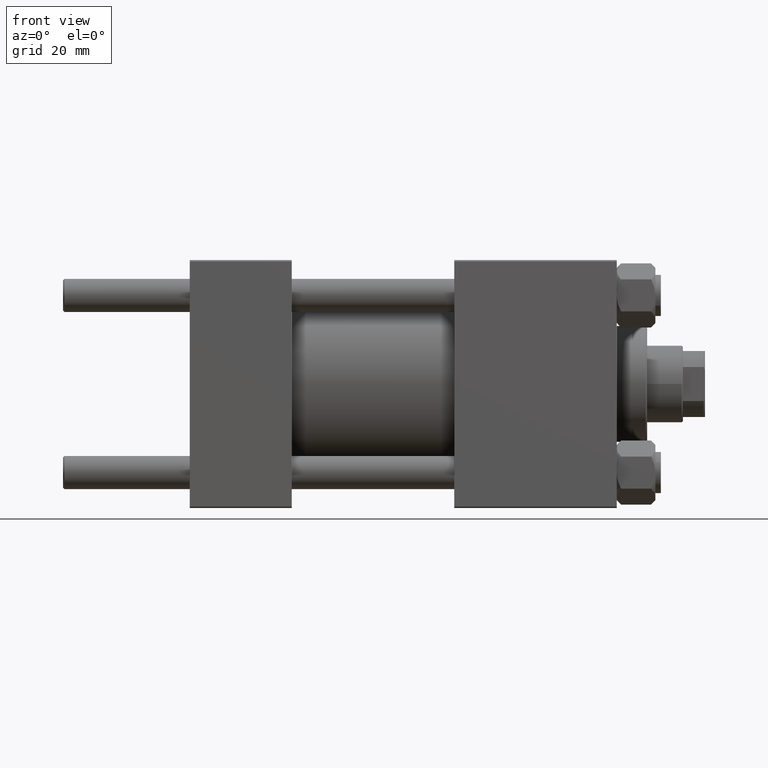
[diagram: clean part render]
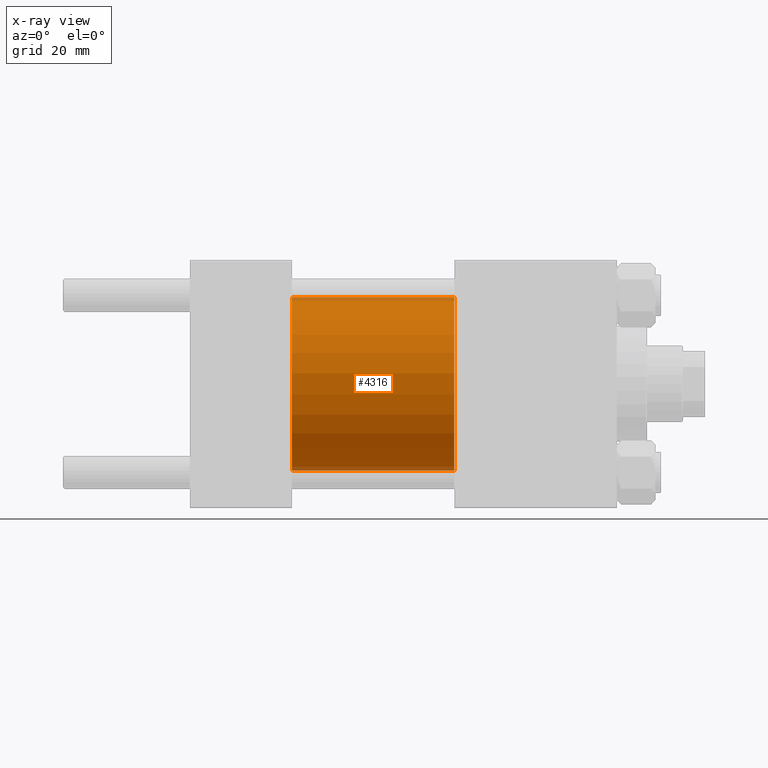
[diagram: x-ray — body ghosted, one internal face saturated and labeled with its STEP entity id]
A machine part, front view, then the same camera in x-ray: the body is ghosted and one INTERNAL B-rep face — a face not visible from any outside direction — is saturated and labeled: STEP entity #4316.
In plain terms, the highlighted cylindrical surface (partial cylindrical patch) has radius 31.5 mm, axis along (-1, -0, -0).
Its self-contained STEP definition (entity closure, byte-faithful):
#108 = VERTEX_POINT ( 'NONE', #19800 ) ;
#137 = VERTEX_POINT ( 'NONE', #34435 ) ;
#1741 = CARTESIAN_POINT ( 'NONE',  ( 96.00000000000000000, 0.000000000000000000, 0.000000000000000000 ) ) ;
#3680 = LINE ( 'NONE', #49521, #48612 ) ;
#4316 = ADVANCED_FACE ( 'NONE', ( #36282 ), #38639, .F. ) ;
#4757 = DIRECTION ( 'NONE',  ( 0.000000000000000000, 0.000000000000000000, 1.000000000000000000 ) ) ;
#6737 = DIRECTION ( 'NONE',  ( 0.000000000000000000, 0.000000000000000000, -1.000000000000000000 ) ) ;
#7254 = EDGE_LOOP ( 'NONE', ( #9039, #31855, #15398, #9642 ) ) ;
#7380 = CARTESIAN_POINT ( 'NONE',  ( 37.00000000000000000, 0.000000000000000000, 31.50000000000000000 ) ) ;
#9039 = ORIENTED_EDGE ( 'NONE', *, *, #11912, .T. ) ;
#9642 = ORIENTED_EDGE ( 'NONE', *, *, #41745, .F. ) ;
#10618 = CARTESIAN_POINT ( 'NONE',  ( 96.00000000000000000, 0.000000000000000000, 0.000000000000000000 ) ) ;
#11912 = EDGE_CURVE ( 'NONE', #108, #12166, #27581, .T. ) ;
#12166 = VERTEX_POINT ( 'NONE', #37588 ) ;
#13100 = CIRCLE ( 'NONE', #48496, 31.50000000000000000 ) ;
#13463 = EDGE_CURVE ( 'NONE', #46384, #137, #13100, .T. ) ;
#14206 = CARTESIAN_POINT ( 'NONE',  ( 96.00000000000000000, 3.857637417314162689E-15, -31.50000000000000000 ) ) ;
#15212 = EDGE_CURVE ( 'NONE', #12166, #137, #17225, .T. ) ;
#15398 = ORIENTED_EDGE ( 'NONE', *, *, #13463, .F. ) ;
#16289 = AXIS2_PLACEMENT_3D ( 'NONE', #10618, #21081, #45169 ) ;
#17225 = LINE ( 'NONE', #14206, #26080 ) ;
#19800 = CARTESIAN_POINT ( 'NONE',  ( 96.00000000000000000, 0.000000000000000000, 31.50000000000000000 ) ) ;
#21081 = DIRECTION ( 'NONE',  ( 1.000000000000000000, 0.000000000000000000, 0.000000000000000000 ) ) ;
#23617 = DIRECTION ( 'NONE',  ( -1.000000000000000000, -0.000000000000000000, -0.000000000000000000 ) ) ;
#25909 = DIRECTION ( 'NONE',  ( 1.000000000000000000, 0.000000000000000000, 0.000000000000000000 ) ) ;
#26080 = VECTOR ( 'NONE', #48709, 1000.000000000000000 ) ;
#27581 = CIRCLE ( 'NONE', #16289, 31.50000000000000000 ) ;
#28131 = AXIS2_PLACEMENT_3D ( 'NONE', #1741, #32481, #4757 ) ;
#31855 = ORIENTED_EDGE ( 'NONE', *, *, #15212, .T. ) ;
#32481 = DIRECTION ( 'NONE',  ( -1.000000000000000000, -0.000000000000000000, -0.000000000000000000 ) ) ;
#34435 = CARTESIAN_POINT ( 'NONE',  ( 37.00000000000000000, 3.857637417314162689E-15, -31.50000000000000000 ) ) ;
#36282 = FACE_OUTER_BOUND ( 'NONE', #7254, .T. ) ;
#37588 = CARTESIAN_POINT ( 'NONE',  ( 96.00000000000000000, 3.857637417314162689E-15, -31.50000000000000000 ) ) ;
#38639 = CYLINDRICAL_SURFACE ( 'NONE', #28131, 31.50000000000000000 ) ;
#41745 = EDGE_CURVE ( 'NONE', #108, #46384, #3680, .T. ) ;
#44820 = CARTESIAN_POINT ( 'NONE',  ( 37.00000000000000000, 0.000000000000000000, 0.000000000000000000 ) ) ;
#45169 = DIRECTION ( 'NONE',  ( 0.000000000000000000, 0.000000000000000000, -1.000000000000000000 ) ) ;
#46384 = VERTEX_POINT ( 'NONE', #7380 ) ;
#48496 = AXIS2_PLACEMENT_3D ( 'NONE', #44820, #25909, #6737 ) ;
#48612 = VECTOR ( 'NONE', #23617, 1000.000000000000000 ) ;
#48709 = DIRECTION ( 'NONE',  ( -1.000000000000000000, -0.000000000000000000, -0.000000000000000000 ) ) ;
#49521 = CARTESIAN_POINT ( 'NONE',  ( 96.00000000000000000, 0.000000000000000000, 31.50000000000000000 ) ) ;